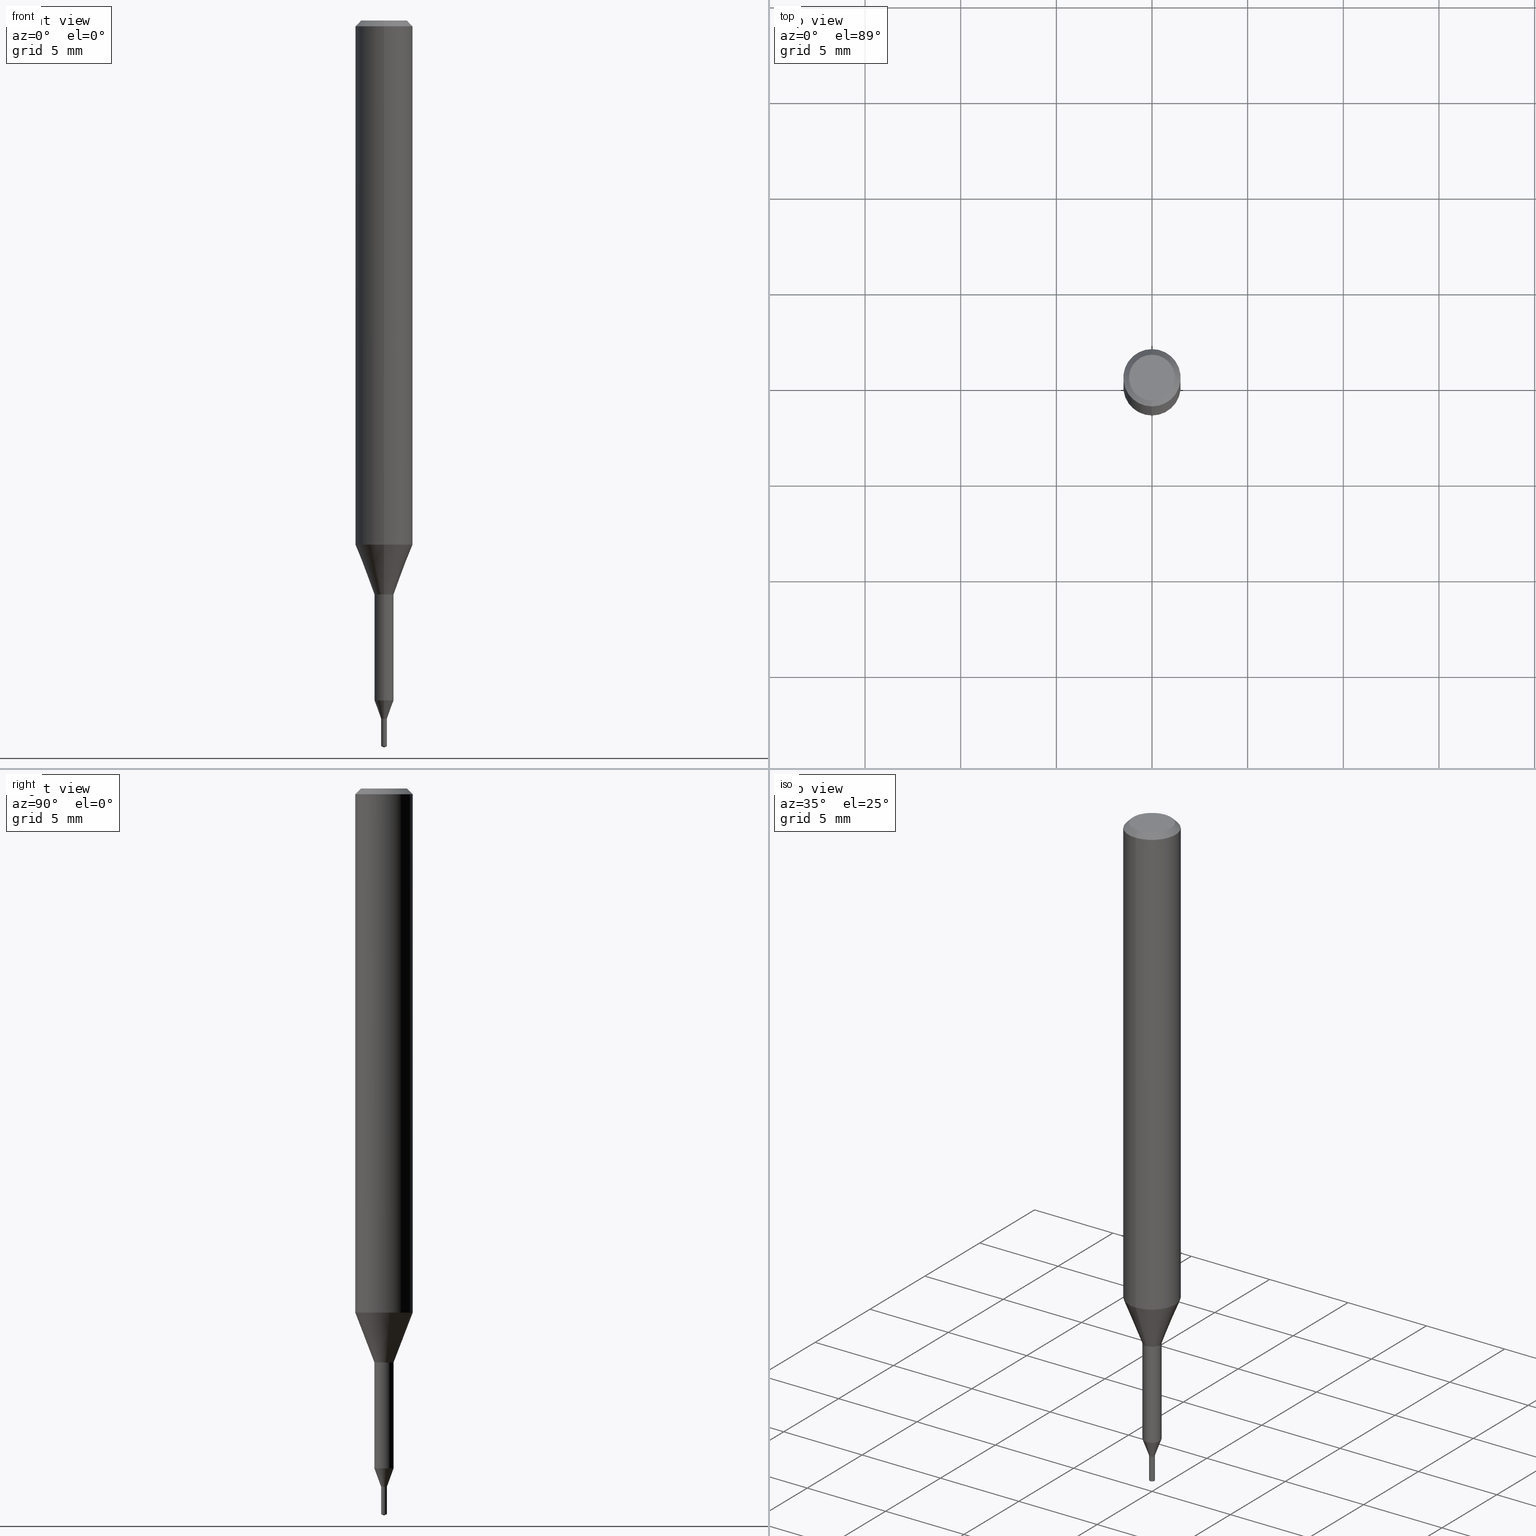
[diagram: canonical four-view strip — front | top / right | iso, engineering-drawing reading convention]
A machine part, canonical four-view strip (front | top / right | iso — engineering-drawing reading convention). The complete STEP part file that produces these views, byte-faithful:
ISO-10303-21;
HEADER;
FILE_DESCRIPTION(('no description'),'unknown implementation level');
FILE_NAME('UTDSX2030-015-Huellk.stp','  ',('CIMSOURCE GmbH'),('CADClick - KiM GmbH - www.kimweb.de'),'unknown preprocess','ACIS','unknown authorization');
FILE_SCHEMA(('automotive_design'));
ENDSEC;
DATA;
#1=MECHANICAL_DESIGN_GEOMETRIC_PRESENTATION_REPRESENTATION(' ',(#14,#15,#16,#17,#18,#19,#20,#21,#22,#23,#24,#25,#26,#27,#28,#29,#30,#31,#32,#33,#34,#35,#36,#37,#38,#39,#40,#41,#42,#43,#44,#45,#46,#47,#48,#49,#50,#51,#52,#53,#54,#55,#56,#57,#58,#59,#60,#61,#62,#63,#64,#65,#66,#67,#68,#69,#70,#71,#72,#73,#74,#75,#76,#77,#78,#79,#80,#81,#82,#83,#84,#85,#86,#87,#88,#89,#90,#91,#92),#10);
#2=PRODUCT_DEFINITION_CONTEXT('',#93,'design');
#3=APPLICATION_PROTOCOL_DEFINITION('INTERNATIONAL STANDARD','automotive_design',1994,#93);
#4=PRODUCT_CATEGORY_RELATIONSHIP('NONE','NONE',#94,#95);
#5=SHAPE_DEFINITION_REPRESENTATION(#96,#97);
#6=PRODUCT_DEFINITION_CONTEXT('',#98,'design');
#7=APPLICATION_PROTOCOL_DEFINITION('INTERNATIONAL STANDARD','automotive_design',1994,#98);
#8=PRODUCT_CATEGORY_RELATIONSHIP('NONE','NONE',#99,#100);
#9=SHAPE_DEFINITION_REPRESENTATION(#101,#102);
#10= (GEOMETRIC_REPRESENTATION_CONTEXT(3)GLOBAL_UNCERTAINTY_ASSIGNED_CONTEXT((#105))GLOBAL_UNIT_ASSIGNED_CONTEXT((#107,#108,#109))REPRESENTATION_CONTEXT('NONE','WORKSPACE'));
#14=STYLED_ITEM('',(#111),#112);
#15=STYLED_ITEM('',(#113),#114);
#16=STYLED_ITEM('',(#115),#116);
#17=STYLED_ITEM('',(#117),#118);
#18=STYLED_ITEM('',(#119),#120);
#19=STYLED_ITEM('',(#121),#122);
#20=STYLED_ITEM('',(#123),#124);
#21=STYLED_ITEM('',(#125),#126);
#22=STYLED_ITEM('',(#127),#128);
#23=STYLED_ITEM('',(#129),#130);
#24=STYLED_ITEM('',(#131),#132);
#25=STYLED_ITEM('',(#133),#134);
#26=STYLED_ITEM('',(#135),#136);
#27=STYLED_ITEM('',(#137),#138);
#28=STYLED_ITEM('',(#139),#140);
#29=STYLED_ITEM('',(#141),#142);
#30=STYLED_ITEM('',(#143),#144);
#31=STYLED_ITEM('',(#145),#146);
#32=STYLED_ITEM('',(#147),#148);
#33=STYLED_ITEM('',(#149),#150);
#34=STYLED_ITEM('',(#151),#152);
#35=STYLED_ITEM('',(#153),#154);
#36=STYLED_ITEM('',(#155),#156);
#37=STYLED_ITEM('',(#157),#158);
#38=STYLED_ITEM('',(#159),#160);
#39=STYLED_ITEM('',(#161),#162);
#40=STYLED_ITEM('',(#163),#164);
#41=STYLED_ITEM('',(#165),#166);
#42=STYLED_ITEM('',(#167),#168);
#43=STYLED_ITEM('',(#169),#170);
#44=STYLED_ITEM('',(#171),#172);
#45=STYLED_ITEM('',(#173),#174);
#46=STYLED_ITEM('',(#175),#176);
#47=STYLED_ITEM('',(#177),#178);
#48=STYLED_ITEM('',(#179),#180);
#49=STYLED_ITEM('',(#181),#182);
#50=STYLED_ITEM('',(#183),#184);
#51=STYLED_ITEM('',(#185),#186);
#52=STYLED_ITEM('',(#187),#188);
#53=STYLED_ITEM('',(#189),#190);
#54=STYLED_ITEM('',(#191),#192);
#55=STYLED_ITEM('',(#193),#194);
#56=STYLED_ITEM('',(#195),#196);
#57=STYLED_ITEM('',(#197),#198);
#58=STYLED_ITEM('',(#199),#200);
#59=STYLED_ITEM('',(#201),#202);
#60=STYLED_ITEM('',(#203),#204);
#61=STYLED_ITEM('',(#205),#206);
#62=STYLED_ITEM('',(#207),#208);
#63=STYLED_ITEM('',(#209),#210);
#64=STYLED_ITEM('',(#211),#212);
#65=STYLED_ITEM('',(#213),#214);
#66=STYLED_ITEM('',(#215),#216);
#67=STYLED_ITEM('',(#217),#218);
#68=STYLED_ITEM('',(#219),#220);
#69=STYLED_ITEM('',(#221),#222);
#70=STYLED_ITEM('',(#223),#224);
#71=STYLED_ITEM('',(#225),#226);
#72=STYLED_ITEM('',(#227),#228);
#73=STYLED_ITEM('',(#229),#230);
#74=STYLED_ITEM('',(#231),#232);
#75=STYLED_ITEM('',(#233),#234);
#76=STYLED_ITEM('',(#235),#236);
#77=STYLED_ITEM('',(#237),#238);
#78=STYLED_ITEM('',(#239),#240);
#79=STYLED_ITEM('',(#241),#242);
#80=STYLED_ITEM('',(#243),#244);
#81=STYLED_ITEM('',(#245),#246);
#82=STYLED_ITEM('',(#247),#248);
#83=STYLED_ITEM('',(#249),#250);
#84=STYLED_ITEM('',(#251),#252);
#85=STYLED_ITEM('',(#253),#254);
#86=STYLED_ITEM('',(#255),#256);
#87=STYLED_ITEM('',(#257),#258);
#88=STYLED_ITEM('',(#259),#260);
#89=STYLED_ITEM('',(#261),#262);
#90=STYLED_ITEM('',(#263),#264);
#91=STYLED_ITEM('',(#265),#266);
#92=STYLED_ITEM('',(#267),#268);
#93=APPLICATION_CONTEXT(' ');
#94=PRODUCT_CATEGORY('part','NONE');
#95=PRODUCT_RELATED_PRODUCT_CATEGORY('detail',' ',(#269));
#96=PRODUCT_DEFINITION_SHAPE('NONE','NONE',#270);
#97=ADVANCED_BREP_SHAPE_REPRESENTATION('1',(#164,#271),#10);
#98=APPLICATION_CONTEXT(' ');
#99=PRODUCT_CATEGORY('part','NONE');
#100=PRODUCT_RELATED_PRODUCT_CATEGORY('detail',' ',(#272));
#101=PRODUCT_DEFINITION_SHAPE('NONE','NONE',#273);
#102=ADVANCED_BREP_SHAPE_REPRESENTATION('2',(#128,#274),#10);
#105=UNCERTAINTY_MEASURE_WITH_UNIT(LENGTH_MEASURE(1.0E-006),#107,'','');
#107= (CONVERSION_BASED_UNIT('MILLIMETRE',#277)LENGTH_UNIT()NAMED_UNIT(#280));
#108= (NAMED_UNIT(#282)PLANE_ANGLE_UNIT()SI_UNIT($,.RADIAN.));
#109= (NAMED_UNIT(#282)SOLID_ANGLE_UNIT()SI_UNIT($,.STERADIAN.));
#111=PRESENTATION_STYLE_ASSIGNMENT((#288));
#112=EDGE_CURVE('',#234,#254,#289,.T.);
#113=PRESENTATION_STYLE_ASSIGNMENT((#290));
#114=ADVANCED_FACE('',(#291),#292,.T.);
#115=PRESENTATION_STYLE_ASSIGNMENT((#293));
#116=EDGE_CURVE('',#222,#254,#294,.T.);
#117=PRESENTATION_STYLE_ASSIGNMENT((#295));
#118=EDGE_CURVE('',#238,#166,#296,.T.);
#119=PRESENTATION_STYLE_ASSIGNMENT((#297));
#120=EDGE_CURVE('',#248,#166,#298,.T.);
#121=PRESENTATION_STYLE_ASSIGNMENT((#299));
#122=EDGE_CURVE('',#186,#184,#300,.T.);
#123=PRESENTATION_STYLE_ASSIGNMENT((#301));
#124=ADVANCED_FACE('',(#302),#303,.T.);
#125=PRESENTATION_STYLE_ASSIGNMENT((#304));
#126=VERTEX_POINT('',#305);
#127=PRESENTATION_STYLE_ASSIGNMENT((#306));
#128=MANIFOLD_SOLID_BREP('2',#307);
#129=PRESENTATION_STYLE_ASSIGNMENT((#308));
#130=ADVANCED_FACE('',(#309,#310),#311,.T.);
#131=PRESENTATION_STYLE_ASSIGNMENT((#312));
#132=EDGE_CURVE('',#144,#186,#313,.T.);
#133=PRESENTATION_STYLE_ASSIGNMENT((#314));
#134=EDGE_CURVE('',#242,#148,#315,.T.);
#135=PRESENTATION_STYLE_ASSIGNMENT((#316));
#136=VERTEX_POINT('',#317);
#137=PRESENTATION_STYLE_ASSIGNMENT((#318));
#138=ADVANCED_FACE('',(#319),#320,.T.);
#139=PRESENTATION_STYLE_ASSIGNMENT((#321));
#140=EDGE_CURVE('',#234,#236,#322,.T.);
#141=PRESENTATION_STYLE_ASSIGNMENT((#323));
#142=ADVANCED_FACE('',(#324),#325,.T.);
#143=PRESENTATION_STYLE_ASSIGNMENT((#326));
#144=VERTEX_POINT('',#327);
#145=PRESENTATION_STYLE_ASSIGNMENT((#328));
#146=EDGE_CURVE('',#126,#222,#329,.T.);
#147=PRESENTATION_STYLE_ASSIGNMENT((#330));
#148=VERTEX_POINT('',#331);
#149=PRESENTATION_STYLE_ASSIGNMENT((#332));
#150=ADVANCED_FACE('',(#333),#334,.T.);
#151=PRESENTATION_STYLE_ASSIGNMENT((#335));
#152=ADVANCED_FACE('',(#336),#337,.T.);
#153=PRESENTATION_STYLE_ASSIGNMENT((#338));
#154=EDGE_CURVE('',#254,#162,#339,.T.);
#155=PRESENTATION_STYLE_ASSIGNMENT((#340));
#156=EDGE_CURVE('',#126,#162,#341,.T.);
#157=PRESENTATION_STYLE_ASSIGNMENT((#342));
#158=VERTEX_POINT('',#343);
#159=PRESENTATION_STYLE_ASSIGNMENT((#344));
#160=EDGE_CURVE('',#186,#246,#345,.T.);
#161=PRESENTATION_STYLE_ASSIGNMENT((#346));
#162=VERTEX_POINT('',#347);
#163=PRESENTATION_STYLE_ASSIGNMENT((#348));
#164=MANIFOLD_SOLID_BREP('1',#349);
#165=PRESENTATION_STYLE_ASSIGNMENT((#350));
#166=VERTEX_POINT('',#351);
#167=PRESENTATION_STYLE_ASSIGNMENT((#352));
#168=ADVANCED_FACE('',(#353),#354,.T.);
#169=PRESENTATION_STYLE_ASSIGNMENT((#355));
#170=ADVANCED_FACE('',(#356),#357,.T.);
#171=PRESENTATION_STYLE_ASSIGNMENT((#358));
#172=EDGE_CURVE('',#162,#126,#359,.T.);
#173=PRESENTATION_STYLE_ASSIGNMENT((#360));
#174=ADVANCED_FACE('',(#361),#362,.T.);
#175=PRESENTATION_STYLE_ASSIGNMENT((#363));
#176=VERTEX_POINT('',#364);
#177=PRESENTATION_STYLE_ASSIGNMENT((#365));
#178=EDGE_CURVE('',#158,#242,#366,.T.);
#179=PRESENTATION_STYLE_ASSIGNMENT((#367));
#180=EDGE_CURVE('',#162,#136,#368,.T.);
#181=PRESENTATION_STYLE_ASSIGNMENT((#369));
#182=VERTEX_POINT('',#370);
#183=PRESENTATION_STYLE_ASSIGNMENT((#371));
#184=VERTEX_POINT('',#372);
#185=PRESENTATION_STYLE_ASSIGNMENT((#373));
#186=VERTEX_POINT('',#374);
#187=PRESENTATION_STYLE_ASSIGNMENT((#375));
#188=EDGE_CURVE('',#242,#182,#376,.T.);
#189=PRESENTATION_STYLE_ASSIGNMENT((#377));
#190=EDGE_CURVE('',#144,#232,#378,.T.);
#191=PRESENTATION_STYLE_ASSIGNMENT((#379));
#192=EDGE_CURVE('',#222,#236,#380,.T.);
#193=PRESENTATION_STYLE_ASSIGNMENT((#381));
#194=EDGE_CURVE('',#158,#238,#382,.T.);
#195=PRESENTATION_STYLE_ASSIGNMENT((#383));
#196=EDGE_CURVE('',#236,#234,#384,.T.);
#197=PRESENTATION_STYLE_ASSIGNMENT((#385));
#198=EDGE_CURVE('',#232,#144,#386,.T.);
#199=PRESENTATION_STYLE_ASSIGNMENT((#387));
#200=ADVANCED_FACE('',(#388),#389,.T.);
#201=PRESENTATION_STYLE_ASSIGNMENT((#390));
#202=EDGE_CURVE('',#246,#204,#391,.T.);
#203=PRESENTATION_STYLE_ASSIGNMENT((#392));
#204=VERTEX_POINT('',#393);
#205=PRESENTATION_STYLE_ASSIGNMENT((#394));
#206=ADVANCED_FACE('',(#395),#396,.T.);
#207=PRESENTATION_STYLE_ASSIGNMENT((#397));
#208=EDGE_CURVE('',#176,#182,#398,.T.);
#209=PRESENTATION_STYLE_ASSIGNMENT((#399));
#210=EDGE_CURVE('',#238,#158,#400,.T.);
#211=PRESENTATION_STYLE_ASSIGNMENT((#401));
#212=EDGE_CURVE('',#176,#148,#402,.T.);
#213=PRESENTATION_STYLE_ASSIGNMENT((#403));
#214=EDGE_CURVE('',#148,#176,#404,.T.);
#215=PRESENTATION_STYLE_ASSIGNMENT((#405));
#216=ADVANCED_FACE('',(#406),#407,.T.);
#217=PRESENTATION_STYLE_ASSIGNMENT((#408));
#218=EDGE_CURVE('',#248,#158,#409,.T.);
#219=PRESENTATION_STYLE_ASSIGNMENT((#410));
#220=ADVANCED_FACE('',(#411),#412,.T.);
#221=PRESENTATION_STYLE_ASSIGNMENT((#413));
#222=VERTEX_POINT('',#414);
#223=PRESENTATION_STYLE_ASSIGNMENT((#415));
#224=ADVANCED_FACE('',(#416),#417,.T.);
#225=PRESENTATION_STYLE_ASSIGNMENT((#418));
#226=ADVANCED_FACE('',(#419),#420,.T.);
#227=PRESENTATION_STYLE_ASSIGNMENT((#421));
#228=ADVANCED_FACE('',(#422),#423,.T.);
#229=PRESENTATION_STYLE_ASSIGNMENT((#424));
#230=ADVANCED_FACE('',(#425),#426,.T.);
#231=PRESENTATION_STYLE_ASSIGNMENT((#427));
#232=VERTEX_POINT('',#428);
#233=PRESENTATION_STYLE_ASSIGNMENT((#429));
#234=VERTEX_POINT('',#430);
#235=PRESENTATION_STYLE_ASSIGNMENT((#431));
#236=VERTEX_POINT('',#432);
#237=PRESENTATION_STYLE_ASSIGNMENT((#433));
#238=VERTEX_POINT('',#434);
#239=PRESENTATION_STYLE_ASSIGNMENT((#435));
#240=EDGE_CURVE('',#184,#186,#436,.T.);
#241=PRESENTATION_STYLE_ASSIGNMENT((#437));
#242=VERTEX_POINT('',#438);
#243=PRESENTATION_STYLE_ASSIGNMENT((#439));
#244=EDGE_CURVE('',#204,#246,#440,.T.);
#245=PRESENTATION_STYLE_ASSIGNMENT((#441));
#246=VERTEX_POINT('',#442);
#247=PRESENTATION_STYLE_ASSIGNMENT((#443));
#248=VERTEX_POINT('',#444);
#249=PRESENTATION_STYLE_ASSIGNMENT((#445));
#250=EDGE_CURVE('',#204,#184,#446,.T.);
#251=PRESENTATION_STYLE_ASSIGNMENT((#447));
#252=ADVANCED_FACE('',(#448),#449,.T.);
#253=PRESENTATION_STYLE_ASSIGNMENT((#450));
#254=VERTEX_POINT('',#451);
#255=PRESENTATION_STYLE_ASSIGNMENT((#452));
#256=EDGE_CURVE('',#166,#248,#453,.T.);
#257=PRESENTATION_STYLE_ASSIGNMENT((#454));
#258=EDGE_CURVE('',#182,#242,#455,.T.);
#259=PRESENTATION_STYLE_ASSIGNMENT((#456));
#260=EDGE_CURVE('',#136,#126,#457,.T.);
#261=PRESENTATION_STYLE_ASSIGNMENT((#458));
#262=EDGE_CURVE('',#184,#232,#459,.T.);
#263=PRESENTATION_STYLE_ASSIGNMENT((#460));
#264=EDGE_CURVE('',#254,#222,#461,.T.);
#265=PRESENTATION_STYLE_ASSIGNMENT((#462));
#266=EDGE_CURVE('',#182,#238,#463,.T.);
#267=PRESENTATION_STYLE_ASSIGNMENT((#464));
#268=ADVANCED_FACE('',(#465),#466,.T.);
#269=PRODUCT('1','1','PART-1-DESC',(#467));
#270=PRODUCT_DEFINITION('NONE','NONE',#468,#2);
#271=AXIS2_PLACEMENT_3D('',#469,#470,#471);
#272=PRODUCT('2','2','PART-2-DESC',(#472));
#273=PRODUCT_DEFINITION('NONE','NONE',#473,#6);
#274=AXIS2_PLACEMENT_3D('',#474,#475,#476);
#277=LENGTH_MEASURE_WITH_UNIT(LENGTH_MEASURE(1.0),#477);
#280=DIMENSIONAL_EXPONENTS(1.0,0.0,0.0,0.0,0.0,0.0,0.0);
#282=DIMENSIONAL_EXPONENTS(0.0,0.0,0.0,0.0,0.0,0.0,0.0);
#288=CURVE_STYLE('',#478,POSITIVE_LENGTH_MEASURE(1.0E-006),#479);
#289=LINE('',#480,#481);
#290=SURFACE_STYLE_USAGE(.BOTH.,#482);
#291=FACE_OUTER_BOUND('',#483,.T.);
#292=PLANE('',#484);
#293=CURVE_STYLE('',#485,POSITIVE_LENGTH_MEASURE(1.0E-006),#486);
#294=CIRCLE('',#487,0.15);
#295=CURVE_STYLE('',#488,POSITIVE_LENGTH_MEASURE(1.0E-006),#489);
#296=LINE('',#490,#491);
#297=CURVE_STYLE('',#492,POSITIVE_LENGTH_MEASURE(1.0E-006),#493);
#298=CIRCLE('',#494,0.5);
#299=CURVE_STYLE('',#495,POSITIVE_LENGTH_MEASURE(1.0E-006),#496);
#300=CIRCLE('',#497,0.49995);
#301=SURFACE_STYLE_USAGE(.BOTH.,#498);
#302=FACE_OUTER_BOUND('',#499,.T.);
#303=CONICAL_SURFACE('',#500,0.075,1.13446400680488);
#304=POINT_STYLE(' ',#501,POSITIVE_LENGTH_MEASURE(1.0E-006),#502);
#305=CARTESIAN_POINT('',(0.15,1.83690953073357E-017,-37.93005385));
#306=SURFACE_STYLE_USAGE(.BOTH.,#503);
#307=CLOSED_SHELL('',(#124,#226,#174,#170,#168,#138,#216));
#308=SURFACE_STYLE_USAGE(.BOTH.,#504);
#309=FACE_BOUND('',#505,.T.);
#310=FACE_OUTER_BOUND('',#506,.T.);
#311=PLANE('',#507);
#312=CURVE_STYLE('',#508,POSITIVE_LENGTH_MEASURE(1.0E-006),#509);
#313=LINE('',#510,#511);
#314=CURVE_STYLE('',#512,POSITIVE_LENGTH_MEASURE(1.0E-006),#513);
#315=LINE('',#514,#515);
#316=POINT_STYLE(' ',#516,POSITIVE_LENGTH_MEASURE(1.0E-006),#517);
#317=CARTESIAN_POINT('',(0.0,0.0,-38.0));
#318=SURFACE_STYLE_USAGE(.BOTH.,#518);
#319=FACE_OUTER_BOUND('',#519,.T.);
#320=CYLINDRICAL_SURFACE('',#520,0.15);
#321=CURVE_STYLE('',#521,POSITIVE_LENGTH_MEASURE(1.0E-006),#522);
#322=CIRCLE('',#523,0.151036382536382);
#323=SURFACE_STYLE_USAGE(.BOTH.,#524);
#324=FACE_OUTER_BOUND('',#525,.T.);
#325=CYLINDRICAL_SURFACE('',#526,0.49995);
#326=POINT_STYLE(' ',#527,POSITIVE_LENGTH_MEASURE(1.0E-006),#528);
#327=CARTESIAN_POINT('',(1.83735500993681E-017,-0.150036377338877,-36.4999));
#328=CURVE_STYLE('',#529,POSITIVE_LENGTH_MEASURE(1.0E-006),#530);
#329=LINE('',#531,#532);
#330=POINT_STYLE(' ',#533,POSITIVE_LENGTH_MEASURE(1.0E-006),#534);
#331=CARTESIAN_POINT('',(1.46952762458685E-016,-1.2,0.0));
#332=SURFACE_STYLE_USAGE(.BOTH.,#535);
#333=FACE_OUTER_BOUND('',#536,.T.);
#334=CONICAL_SURFACE('',#537,1.35,0.785398163397447);
#335=SURFACE_STYLE_USAGE(.BOTH.,#538);
#336=FACE_OUTER_BOUND('',#539,.T.);
#337=CONICAL_SURFACE('',#540,1.0,0.366530581623394);
#338=CURVE_STYLE('',#541,POSITIVE_LENGTH_MEASURE(1.0E-006),#542);
#339=LINE('',#543,#544);
#340=CURVE_STYLE('',#545,POSITIVE_LENGTH_MEASURE(1.0E-006),#546);
#341=CIRCLE('',#547,0.15);
#342=POINT_STYLE(' ',#548,POSITIVE_LENGTH_MEASURE(1.0E-006),#549);
#343=CARTESIAN_POINT('',(1.83690953073357E-016,-1.5,-27.395));
#344=CURVE_STYLE('',#550,POSITIVE_LENGTH_MEASURE(1.0E-006),#551);
#345=LINE('',#552,#553);
#346=POINT_STYLE(' ',#554,POSITIVE_LENGTH_MEASURE(1.0E-006),#555);
#347=CARTESIAN_POINT('',(-0.15,0.0,-37.93005385));
#348=SURFACE_STYLE_USAGE(.BOTH.,#556);
#349=CLOSED_SHELL('',(#224,#142,#152,#228,#150,#114,#252,#230,#220,#130,#268,#200,#206));
#350=POINT_STYLE(' ',#557,POSITIVE_LENGTH_MEASURE(1.0E-006),#558);
#351=CARTESIAN_POINT('',(0.0,0.5,-30.0));
#352=SURFACE_STYLE_USAGE(.BOTH.,#559);
#353=FACE_OUTER_BOUND('',#560,.T.);
#354=CONICAL_SURFACE('',#561,0.150518191268191,1.47460464266916);
#355=SURFACE_STYLE_USAGE(.BOTH.,#562);
#356=FACE_OUTER_BOUND('',#563,.T.);
#357=PLANE('',#564);
#358=CURVE_STYLE('',#565,POSITIVE_LENGTH_MEASURE(1.0E-006),#566);
#359=CIRCLE('',#567,0.15);
#360=SURFACE_STYLE_USAGE(.BOTH.,#568);
#361=FACE_OUTER_BOUND('',#569,.T.);
#362=CONICAL_SURFACE('',#570,0.150518191268191,1.47460464266916);
#363=POINT_STYLE(' ',#571,POSITIVE_LENGTH_MEASURE(1.0E-006),#572);
#364=CARTESIAN_POINT('',(0.0,1.2,0.0));
#365=CURVE_STYLE('',#573,POSITIVE_LENGTH_MEASURE(1.0E-006),#574);
#366=LINE('',#575,#576);
#367=CURVE_STYLE('',#577,POSITIVE_LENGTH_MEASURE(1.0E-006),#578);
#368=LINE('',#579,#580);
#369=POINT_STYLE(' ',#581,POSITIVE_LENGTH_MEASURE(1.0E-006),#582);
#370=CARTESIAN_POINT('',(0.0,1.5,-0.300000000000001));
#371=POINT_STYLE(' ',#583,POSITIVE_LENGTH_MEASURE(1.0E-006),#584);
#372=CARTESIAN_POINT('',(0.0,0.49995,-35.538));
#373=POINT_STYLE(' ',#585,POSITIVE_LENGTH_MEASURE(1.0E-006),#586);
#374=CARTESIAN_POINT('',(6.12241946593498E-017,-0.49995,-35.538));
#375=CURVE_STYLE('',#587,POSITIVE_LENGTH_MEASURE(1.0E-006),#588);
#376=CIRCLE('',#589,1.5);
#377=CURVE_STYLE('',#590,POSITIVE_LENGTH_MEASURE(1.0E-006),#591);
#378=CIRCLE('',#592,0.150036377338877);
#379=CURVE_STYLE('',#593,POSITIVE_LENGTH_MEASURE(1.0E-006),#594);
#380=LINE('',#595,#596);
#381=CURVE_STYLE('',#597,POSITIVE_LENGTH_MEASURE(1.0E-006),#598);
#382=CIRCLE('',#599,1.5);
#383=CURVE_STYLE('',#600,POSITIVE_LENGTH_MEASURE(1.0E-006),#601);
#384=CIRCLE('',#602,0.151036382536382);
#385=CURVE_STYLE('',#603,POSITIVE_LENGTH_MEASURE(1.0E-006),#604);
#386=CIRCLE('',#605,0.150036377338877);
#387=SURFACE_STYLE_USAGE(.BOTH.,#606);
#388=FACE_OUTER_BOUND('',#607,.T.);
#389=CONICAL_SURFACE('',#608,0.324993188669439,0.348892020458911);
#390=CURVE_STYLE('',#609,POSITIVE_LENGTH_MEASURE(1.0E-006),#610);
#391=CIRCLE('',#611,0.49995);
#392=POINT_STYLE(' ',#612,POSITIVE_LENGTH_MEASURE(1.0E-006),#613);
#393=CARTESIAN_POINT('',(0.0,0.49995,-30.0));
#394=SURFACE_STYLE_USAGE(.BOTH.,#614);
#395=FACE_OUTER_BOUND('',#615,.T.);
#396=PLANE('',#616);
#397=CURVE_STYLE('',#617,POSITIVE_LENGTH_MEASURE(1.0E-006),#618);
#398=LINE('',#619,#620);
#399=CURVE_STYLE('',#621,POSITIVE_LENGTH_MEASURE(1.0E-006),#622);
#400=CIRCLE('',#623,1.5);
#401=CURVE_STYLE('',#624,POSITIVE_LENGTH_MEASURE(1.0E-006),#625);
#402=CIRCLE('',#626,1.2);
#403=CURVE_STYLE('',#627,POSITIVE_LENGTH_MEASURE(1.0E-006),#628);
#404=CIRCLE('',#629,1.2);
#405=SURFACE_STYLE_USAGE(.BOTH.,#630);
#406=FACE_OUTER_BOUND('',#631,.T.);
#407=CONICAL_SURFACE('',#632,0.075,1.13446400680488);
#408=CURVE_STYLE('',#633,POSITIVE_LENGTH_MEASURE(1.0E-006),#634);
#409=LINE('',#635,#636);
#410=SURFACE_STYLE_USAGE(.BOTH.,#637);
#411=FACE_OUTER_BOUND('',#638,.T.);
#412=CONICAL_SURFACE('',#639,1.0,0.366530581623394);
#413=POINT_STYLE(' ',#640,POSITIVE_LENGTH_MEASURE(1.0E-006),#641);
#414=CARTESIAN_POINT('',(0.15,1.83690953073357E-017,-36.5));
#415=SURFACE_STYLE_USAGE(.BOTH.,#642);
#416=FACE_OUTER_BOUND('',#643,.T.);
#417=CONICAL_SURFACE('',#644,0.324993188669439,0.348892020458911);
#418=SURFACE_STYLE_USAGE(.BOTH.,#645);
#419=FACE_OUTER_BOUND('',#646,.T.);
#420=CYLINDRICAL_SURFACE('',#647,0.15);
#421=SURFACE_STYLE_USAGE(.BOTH.,#648);
#422=FACE_OUTER_BOUND('',#649,.T.);
#423=CYLINDRICAL_SURFACE('',#650,1.5);
#424=SURFACE_STYLE_USAGE(.BOTH.,#651);
#425=FACE_OUTER_BOUND('',#652,.T.);
#426=CYLINDRICAL_SURFACE('',#653,1.5);
#427=POINT_STYLE(' ',#654,POSITIVE_LENGTH_MEASURE(1.0E-006),#655);
#428=CARTESIAN_POINT('',(0.0,0.150036377338877,-36.4999));
#429=POINT_STYLE(' ',#656,POSITIVE_LENGTH_MEASURE(1.0E-006),#657);
#430=CARTESIAN_POINT('',(-0.151036382536382,0.0,-36.4999));
#431=POINT_STYLE(' ',#658,POSITIVE_LENGTH_MEASURE(1.0E-006),#659);
#432=CARTESIAN_POINT('',(0.151036382536382,1.84960113712401E-017,-36.4999));
#433=POINT_STYLE(' ',#660,POSITIVE_LENGTH_MEASURE(1.0E-006),#661);
#434=CARTESIAN_POINT('',(0.0,1.5,-27.395));
#435=CURVE_STYLE('',#662,POSITIVE_LENGTH_MEASURE(1.0E-006),#663);
#436=CIRCLE('',#664,0.49995);
#437=POINT_STYLE(' ',#665,POSITIVE_LENGTH_MEASURE(1.0E-006),#666);
#438=CARTESIAN_POINT('',(1.83690953073357E-016,-1.5,-0.300000000000001));
#439=CURVE_STYLE('',#667,POSITIVE_LENGTH_MEASURE(1.0E-006),#668);
#440=CIRCLE('',#669,0.49995);
#441=POINT_STYLE(' ',#670,POSITIVE_LENGTH_MEASURE(1.0E-006),#671);
#442=CARTESIAN_POINT('',(6.12241946593498E-017,-0.49995,-30.0));
#443=POINT_STYLE(' ',#672,POSITIVE_LENGTH_MEASURE(1.0E-006),#673);
#444=CARTESIAN_POINT('',(6.12303176911189E-017,-0.5,-30.0));
#445=CURVE_STYLE('',#674,POSITIVE_LENGTH_MEASURE(1.0E-006),#675);
#446=LINE('',#676,#677);
#447=SURFACE_STYLE_USAGE(.BOTH.,#678);
#448=FACE_OUTER_BOUND('',#679,.T.);
#449=CONICAL_SURFACE('',#680,1.35,0.785398163397447);
#450=POINT_STYLE(' ',#681,POSITIVE_LENGTH_MEASURE(1.0E-006),#682);
#451=CARTESIAN_POINT('',(-0.15,0.0,-36.5));
#452=CURVE_STYLE('',#683,POSITIVE_LENGTH_MEASURE(1.0E-006),#684);
#453=CIRCLE('',#685,0.5);
#454=CURVE_STYLE('',#686,POSITIVE_LENGTH_MEASURE(1.0E-006),#687);
#455=CIRCLE('',#688,1.5);
#456=CURVE_STYLE('',#689,POSITIVE_LENGTH_MEASURE(1.0E-006),#690);
#457=LINE('',#691,#692);
#458=CURVE_STYLE('',#693,POSITIVE_LENGTH_MEASURE(1.0E-006),#694);
#459=LINE('',#695,#696);
#460=CURVE_STYLE('',#697,POSITIVE_LENGTH_MEASURE(1.0E-006),#698);
#461=CIRCLE('',#699,0.15);
#462=CURVE_STYLE('',#700,POSITIVE_LENGTH_MEASURE(1.0E-006),#701);
#463=LINE('',#702,#703);
#464=SURFACE_STYLE_USAGE(.BOTH.,#704);
#465=FACE_OUTER_BOUND('',#705,.T.);
#466=CYLINDRICAL_SURFACE('',#706,0.49995);
#467=PRODUCT_CONTEXT('',#93,'mechanical');
#468=PRODUCT_DEFINITION_FORMATION_WITH_SPECIFIED_SOURCE(' ','NONE',#269,.NOT_KNOWN.);
#469=CARTESIAN_POINT('',(0.0,0.0,0.0));
#470=DIRECTION('',(0.0,0.0,1.0));
#471=DIRECTION('',(1.0,0.0,0.0));
#472=PRODUCT_CONTEXT('',#98,'mechanical');
#473=PRODUCT_DEFINITION_FORMATION_WITH_SPECIFIED_SOURCE(' ','NONE',#272,.NOT_KNOWN.);
#474=CARTESIAN_POINT('',(0.0,0.0,0.0));
#475=DIRECTION('',(0.0,0.0,1.0));
#476=DIRECTION('',(1.0,0.0,0.0));
#477= (NAMED_UNIT(#280)LENGTH_UNIT()SI_UNIT(.MILLI.,.METRE.));
#478=DRAUGHTING_PRE_DEFINED_CURVE_FONT('continuous');
#479=COLOUR_RGB('',0.800000011920929,0.800000011920929,0.800000011920929);
#480=CARTESIAN_POINT('',(-0.150518191268191,-1.84325533392879E-017,-36.49995));
#481=VECTOR('',#708,1.0);
#482=SURFACE_SIDE_STYLE('',(#709));
#483=EDGE_LOOP('',(#710,#711));
#484=AXIS2_PLACEMENT_3D('',#712,#713,#714);
#485=DRAUGHTING_PRE_DEFINED_CURVE_FONT('continuous');
#486=COLOUR_RGB('',0.800000011920929,0.800000011920929,0.800000011920929);
#487=AXIS2_PLACEMENT_3D('',#715,#716,#717);
#488=DRAUGHTING_PRE_DEFINED_CURVE_FONT('continuous');
#489=COLOUR_RGB('',0.498039215803146,0.498039215803146,0.498039215803146);
#490=CARTESIAN_POINT('',(-1.22460635382238E-016,1.0,-28.6975));
#491=VECTOR('',#718,1.0);
#492=DRAUGHTING_PRE_DEFINED_CURVE_FONT('continuous');
#493=COLOUR_RGB('',0.498039215803146,0.498039215803146,0.498039215803146);
#494=AXIS2_PLACEMENT_3D('',#719,#720,#721);
#495=DRAUGHTING_PRE_DEFINED_CURVE_FONT('continuous');
#496=COLOUR_RGB('',0.498039215803146,0.498039215803146,0.498039215803146);
#497=AXIS2_PLACEMENT_3D('',#722,#723,#724);
#498=SURFACE_SIDE_STYLE('',(#725));
#499=EDGE_LOOP('',(#726,#727,#728));
#500=AXIS2_PLACEMENT_3D('',#729,#730,#731);
#501=PRE_DEFINED_MARKER('');
#502=COLOUR_RGB('',0.800000011920929,0.800000011920929,0.800000011920929);
#503=SURFACE_SIDE_STYLE('',(#732));
#504=SURFACE_SIDE_STYLE('',(#733));
#505=EDGE_LOOP('',(#734,#735));
#506=EDGE_LOOP('',(#736,#737));
#507=AXIS2_PLACEMENT_3D('',#738,#739,#740);
#508=DRAUGHTING_PRE_DEFINED_CURVE_FONT('continuous');
#509=COLOUR_RGB('',0.498039215803146,0.498039215803146,0.498039215803146);
#510=CARTESIAN_POINT('',(3.97988723793589E-017,-0.324993188669439,-36.01895));
#511=VECTOR('',#741,1.0);
#512=DRAUGHTING_PRE_DEFINED_CURVE_FONT('continuous');
#513=COLOUR_RGB('',0.498039215803146,0.498039215803146,0.498039215803146);
#514=CARTESIAN_POINT('',(1.65321857766021E-016,-1.35,-0.150000000000002));
#515=VECTOR('',#742,1.0);
#516=PRE_DEFINED_MARKER('');
#517=COLOUR_RGB('',0.800000011920929,0.800000011920929,0.800000011920929);
#518=SURFACE_SIDE_STYLE('',(#743));
#519=EDGE_LOOP('',(#744,#745,#746,#747));
#520=AXIS2_PLACEMENT_3D('',#748,#749,#750);
#521=DRAUGHTING_PRE_DEFINED_CURVE_FONT('continuous');
#522=COLOUR_RGB('',0.800000011920929,0.800000011920929,0.800000011920929);
#523=AXIS2_PLACEMENT_3D('',#751,#752,#753);
#524=SURFACE_SIDE_STYLE('',(#754));
#525=EDGE_LOOP('',(#755,#756,#757,#758));
#526=AXIS2_PLACEMENT_3D('',#759,#760,#761);
#527=PRE_DEFINED_MARKER('');
#528=COLOUR_RGB('',0.498039215803146,0.498039215803146,0.498039215803146);
#529=DRAUGHTING_PRE_DEFINED_CURVE_FONT('continuous');
#530=COLOUR_RGB('',0.800000011920929,0.800000011920929,0.800000011920929);
#531=CARTESIAN_POINT('',(0.15,1.83690953073357E-017,-37.215026925));
#532=VECTOR('',#762,1.0);
#533=PRE_DEFINED_MARKER('');
#534=COLOUR_RGB('',0.498039215803146,0.498039215803146,0.498039215803146);
#535=SURFACE_SIDE_STYLE('',(#763));
#536=EDGE_LOOP('',(#764,#765,#766,#767));
#537=AXIS2_PLACEMENT_3D('',#768,#769,#770);
#538=SURFACE_SIDE_STYLE('',(#771));
#539=EDGE_LOOP('',(#772,#773,#774,#775));
#540=AXIS2_PLACEMENT_3D('',#776,#777,#778);
#541=DRAUGHTING_PRE_DEFINED_CURVE_FONT('continuous');
#542=COLOUR_RGB('',0.800000011920929,0.800000011920929,0.800000011920929);
#543=CARTESIAN_POINT('',(-0.15,-1.83690953073357E-017,-37.215026925));
#544=VECTOR('',#779,1.0);
#545=DRAUGHTING_PRE_DEFINED_CURVE_FONT('continuous');
#546=COLOUR_RGB('',0.800000011920929,0.800000011920929,0.800000011920929);
#547=AXIS2_PLACEMENT_3D('',#780,#781,#782);
#548=PRE_DEFINED_MARKER('');
#549=COLOUR_RGB('',0.498039215803146,0.498039215803146,0.498039215803146);
#550=DRAUGHTING_PRE_DEFINED_CURVE_FONT('continuous');
#551=COLOUR_RGB('',0.498039215803146,0.498039215803146,0.498039215803146);
#552=CARTESIAN_POINT('',(6.12241946593498E-017,-0.49995,-32.769));
#553=VECTOR('',#783,1.0);
#554=PRE_DEFINED_MARKER('');
#555=COLOUR_RGB('',0.800000011920929,0.800000011920929,0.800000011920929);
#556=SURFACE_SIDE_STYLE('',(#784));
#557=PRE_DEFINED_MARKER('');
#558=COLOUR_RGB('',0.498039215803146,0.498039215803146,0.498039215803146);
#559=SURFACE_SIDE_STYLE('',(#785));
#560=EDGE_LOOP('',(#786,#787,#788,#789));
#561=AXIS2_PLACEMENT_3D('',#790,#791,#792);
#562=SURFACE_SIDE_STYLE('',(#793));
#563=EDGE_LOOP('',(#794,#795));
#564=AXIS2_PLACEMENT_3D('',#796,#797,#798);
#565=DRAUGHTING_PRE_DEFINED_CURVE_FONT('continuous');
#566=COLOUR_RGB('',0.800000011920929,0.800000011920929,0.800000011920929);
#567=AXIS2_PLACEMENT_3D('',#799,#800,#801);
#568=SURFACE_SIDE_STYLE('',(#802));
#569=EDGE_LOOP('',(#803,#804,#805,#806));
#570=AXIS2_PLACEMENT_3D('',#807,#808,#809);
#571=PRE_DEFINED_MARKER('');
#572=COLOUR_RGB('',0.498039215803146,0.498039215803146,0.498039215803146);
#573=DRAUGHTING_PRE_DEFINED_CURVE_FONT('continuous');
#574=COLOUR_RGB('',0.498039215803146,0.498039215803146,0.498039215803146);
#575=CARTESIAN_POINT('',(1.83690953073357E-016,-1.5,-13.8475));
#576=VECTOR('',#810,1.0);
#577=DRAUGHTING_PRE_DEFINED_CURVE_FONT('continuous');
#578=COLOUR_RGB('',0.800000011920929,0.800000011920929,0.800000011920929);
#579=CARTESIAN_POINT('',(-0.075,-9.18454765366783E-018,-37.965026925));
#580=VECTOR('',#811,1.0);
#581=PRE_DEFINED_MARKER('');
#582=COLOUR_RGB('',0.498039215803146,0.498039215803146,0.498039215803146);
#583=PRE_DEFINED_MARKER('');
#584=COLOUR_RGB('',0.498039215803146,0.498039215803146,0.498039215803146);
#585=PRE_DEFINED_MARKER('');
#586=COLOUR_RGB('',0.498039215803146,0.498039215803146,0.498039215803146);
#587=DRAUGHTING_PRE_DEFINED_CURVE_FONT('continuous');
#588=COLOUR_RGB('',0.498039215803146,0.498039215803146,0.498039215803146);
#589=AXIS2_PLACEMENT_3D('',#812,#813,#814);
#590=DRAUGHTING_PRE_DEFINED_CURVE_FONT('continuous');
#591=COLOUR_RGB('',0.498039215803146,0.498039215803146,0.498039215803146);
#592=AXIS2_PLACEMENT_3D('',#815,#816,#817);
#593=DRAUGHTING_PRE_DEFINED_CURVE_FONT('continuous');
#594=COLOUR_RGB('',0.800000011920929,0.800000011920929,0.800000011920929);
#595=CARTESIAN_POINT('',(0.150518191268191,1.84325533392879E-017,-36.49995));
#596=VECTOR('',#818,1.0);
#597=DRAUGHTING_PRE_DEFINED_CURVE_FONT('continuous');
#598=COLOUR_RGB('',0.498039215803146,0.498039215803146,0.498039215803146);
#599=AXIS2_PLACEMENT_3D('',#819,#820,#821);
#600=DRAUGHTING_PRE_DEFINED_CURVE_FONT('continuous');
#601=COLOUR_RGB('',0.800000011920929,0.800000011920929,0.800000011920929);
#602=AXIS2_PLACEMENT_3D('',#822,#823,#824);
#603=DRAUGHTING_PRE_DEFINED_CURVE_FONT('continuous');
#604=COLOUR_RGB('',0.498039215803146,0.498039215803146,0.498039215803146);
#605=AXIS2_PLACEMENT_3D('',#825,#826,#827);
#606=SURFACE_SIDE_STYLE('',(#828));
#607=EDGE_LOOP('',(#829,#830,#831,#832));
#608=AXIS2_PLACEMENT_3D('',#833,#834,#835);
#609=DRAUGHTING_PRE_DEFINED_CURVE_FONT('continuous');
#610=COLOUR_RGB('',0.498039215803146,0.498039215803146,0.498039215803146);
#611=AXIS2_PLACEMENT_3D('',#836,#837,#838);
#612=PRE_DEFINED_MARKER('');
#613=COLOUR_RGB('',0.498039215803146,0.498039215803146,0.498039215803146);
#614=SURFACE_SIDE_STYLE('',(#839));
#615=EDGE_LOOP('',(#840,#841));
#616=AXIS2_PLACEMENT_3D('',#842,#843,#844);
#617=DRAUGHTING_PRE_DEFINED_CURVE_FONT('continuous');
#618=COLOUR_RGB('',0.498039215803146,0.498039215803146,0.498039215803146);
#619=CARTESIAN_POINT('',(-1.65321857766021E-016,1.35,-0.150000000000002));
#620=VECTOR('',#845,1.0);
#621=DRAUGHTING_PRE_DEFINED_CURVE_FONT('continuous');
#622=COLOUR_RGB('',0.498039215803146,0.498039215803146,0.498039215803146);
#623=AXIS2_PLACEMENT_3D('',#846,#847,#848);
#624=DRAUGHTING_PRE_DEFINED_CURVE_FONT('continuous');
#625=COLOUR_RGB('',0.498039215803146,0.498039215803146,0.498039215803146);
#626=AXIS2_PLACEMENT_3D('',#849,#850,#851);
#627=DRAUGHTING_PRE_DEFINED_CURVE_FONT('continuous');
#628=COLOUR_RGB('',0.498039215803146,0.498039215803146,0.498039215803146);
#629=AXIS2_PLACEMENT_3D('',#852,#853,#854);
#630=SURFACE_SIDE_STYLE('',(#855));
#631=EDGE_LOOP('',(#856,#857,#858));
#632=AXIS2_PLACEMENT_3D('',#859,#860,#861);
#633=DRAUGHTING_PRE_DEFINED_CURVE_FONT('continuous');
#634=COLOUR_RGB('',0.498039215803146,0.498039215803146,0.498039215803146);
#635=CARTESIAN_POINT('',(1.22460635382238E-016,-1.0,-28.6975));
#636=VECTOR('',#862,1.0);
#637=SURFACE_SIDE_STYLE('',(#863));
#638=EDGE_LOOP('',(#864,#865,#866,#867));
#639=AXIS2_PLACEMENT_3D('',#868,#869,#870);
#640=PRE_DEFINED_MARKER('');
#641=COLOUR_RGB('',0.800000011920929,0.800000011920929,0.800000011920929);
#642=SURFACE_SIDE_STYLE('',(#871));
#643=EDGE_LOOP('',(#872,#873,#874,#875));
#644=AXIS2_PLACEMENT_3D('',#876,#877,#878);
#645=SURFACE_SIDE_STYLE('',(#879));
#646=EDGE_LOOP('',(#880,#881,#882,#883));
#647=AXIS2_PLACEMENT_3D('',#884,#885,#886);
#648=SURFACE_SIDE_STYLE('',(#887));
#649=EDGE_LOOP('',(#888,#889,#890,#891));
#650=AXIS2_PLACEMENT_3D('',#892,#893,#894);
#651=SURFACE_SIDE_STYLE('',(#895));
#652=EDGE_LOOP('',(#896,#897,#898,#899));
#653=AXIS2_PLACEMENT_3D('',#900,#901,#902);
#654=PRE_DEFINED_MARKER('');
#655=COLOUR_RGB('',0.498039215803146,0.498039215803146,0.498039215803146);
#656=PRE_DEFINED_MARKER('');
#657=COLOUR_RGB('',0.800000011920929,0.800000011920929,0.800000011920929);
#658=PRE_DEFINED_MARKER('');
#659=COLOUR_RGB('',0.800000011920929,0.800000011920929,0.800000011920929);
#660=PRE_DEFINED_MARKER('');
#661=COLOUR_RGB('',0.498039215803146,0.498039215803146,0.498039215803146);
#662=DRAUGHTING_PRE_DEFINED_CURVE_FONT('continuous');
#663=COLOUR_RGB('',0.498039215803146,0.498039215803146,0.498039215803146);
#664=AXIS2_PLACEMENT_3D('',#903,#904,#905);
#665=PRE_DEFINED_MARKER('');
#666=COLOUR_RGB('',0.498039215803146,0.498039215803146,0.498039215803146);
#667=DRAUGHTING_PRE_DEFINED_CURVE_FONT('continuous');
#668=COLOUR_RGB('',0.498039215803146,0.498039215803146,0.498039215803146);
#669=AXIS2_PLACEMENT_3D('',#906,#907,#908);
#670=PRE_DEFINED_MARKER('');
#671=COLOUR_RGB('',0.498039215803146,0.498039215803146,0.498039215803146);
#672=PRE_DEFINED_MARKER('');
#673=COLOUR_RGB('',0.498039215803146,0.498039215803146,0.498039215803146);
#674=DRAUGHTING_PRE_DEFINED_CURVE_FONT('continuous');
#675=COLOUR_RGB('',0.498039215803146,0.498039215803146,0.498039215803146);
#676=CARTESIAN_POINT('',(-6.12241946593498E-017,0.49995,-32.769));
#677=VECTOR('',#909,1.0);
#678=SURFACE_SIDE_STYLE('',(#910));
#679=EDGE_LOOP('',(#911,#912,#913,#914));
#680=AXIS2_PLACEMENT_3D('',#915,#916,#917);
#681=PRE_DEFINED_MARKER('');
#682=COLOUR_RGB('',0.800000011920929,0.800000011920929,0.800000011920929);
#683=DRAUGHTING_PRE_DEFINED_CURVE_FONT('continuous');
#684=COLOUR_RGB('',0.498039215803146,0.498039215803146,0.498039215803146);
#685=AXIS2_PLACEMENT_3D('',#918,#919,#920);
#686=DRAUGHTING_PRE_DEFINED_CURVE_FONT('continuous');
#687=COLOUR_RGB('',0.498039215803146,0.498039215803146,0.498039215803146);
#688=AXIS2_PLACEMENT_3D('',#921,#922,#923);
#689=DRAUGHTING_PRE_DEFINED_CURVE_FONT('continuous');
#690=COLOUR_RGB('',0.800000011920929,0.800000011920929,0.800000011920929);
#691=CARTESIAN_POINT('',(0.075,9.18454765366783E-018,-37.965026925));
#692=VECTOR('',#924,1.0);
#693=DRAUGHTING_PRE_DEFINED_CURVE_FONT('continuous');
#694=COLOUR_RGB('',0.498039215803146,0.498039215803146,0.498039215803146);
#695=CARTESIAN_POINT('',(-3.97988723793589E-017,0.324993188669439,-36.01895));
#696=VECTOR('',#925,1.0);
#697=DRAUGHTING_PRE_DEFINED_CURVE_FONT('continuous');
#698=COLOUR_RGB('',0.800000011920929,0.800000011920929,0.800000011920929);
#699=AXIS2_PLACEMENT_3D('',#926,#927,#928);
#700=DRAUGHTING_PRE_DEFINED_CURVE_FONT('continuous');
#701=COLOUR_RGB('',0.498039215803146,0.498039215803146,0.498039215803146);
#702=CARTESIAN_POINT('',(-1.83690953073357E-016,1.5,-13.8475));
#703=VECTOR('',#929,1.0);
#704=SURFACE_SIDE_STYLE('',(#930));
#705=EDGE_LOOP('',(#931,#932,#933,#934));
#706=AXIS2_PLACEMENT_3D('',#935,#936,#937);
#708=DIRECTION('',(0.995377146146199,1.21894517762022E-016,-0.096043411694135));
#709=SURFACE_STYLE_FILL_AREA(#938);
#710=ORIENTED_EDGE('',*,*,#212,.F.);
#711=ORIENTED_EDGE('',*,*,#214,.F.);
#712=CARTESIAN_POINT('',(0.0,0.6,0.0));
#713=DIRECTION('',(-0.0,0.0,1.0));
#714=DIRECTION('',(0.0,-1.0,0.0));
#715=CARTESIAN_POINT('',(0.0,0.0,-36.5));
#716=DIRECTION('',(0.0,0.0,-1.0));
#717=DIRECTION('',(-1.0,0.0,0.0));
#718=DIRECTION('',(4.38872745501645E-017,-0.35837862847256,-0.933576327171018));
#719=CARTESIAN_POINT('',(0.0,0.0,-30.0));
#720=DIRECTION('',(0.0,0.0,-1.0));
#721=DIRECTION('',(0.0,1.0,0.0));
#722=CARTESIAN_POINT('',(0.0,0.0,-35.538));
#723=DIRECTION('',(0.0,0.0,-1.0));
#724=DIRECTION('',(0.0,1.0,0.0));
#725=SURFACE_STYLE_FILL_AREA(#939);
#726=ORIENTED_EDGE('',*,*,#260,.F.);
#727=ORIENTED_EDGE('',*,*,#180,.F.);
#728=ORIENTED_EDGE('',*,*,#172,.T.);
#729=CARTESIAN_POINT('',(0.0,0.0,-37.965026925));
#730=DIRECTION('',(-0.0,-0.0,1.0));
#731=DIRECTION('',(-1.0,0.0,0.0));
#732=SURFACE_STYLE_FILL_AREA(#940);
#733=SURFACE_STYLE_FILL_AREA(#941);
#734=ORIENTED_EDGE('',*,*,#244,.F.);
#735=ORIENTED_EDGE('',*,*,#202,.F.);
#736=ORIENTED_EDGE('',*,*,#256,.T.);
#737=ORIENTED_EDGE('',*,*,#120,.T.);
#738=CARTESIAN_POINT('',(0.0,0.499975,-30.0));
#739=DIRECTION('',(0.0,0.0,-1.0));
#740=DIRECTION('',(0.0,1.0,0.0));
#741=DIRECTION('',(4.18639998903644E-017,-0.341856791447259,0.939752059929312));
#742=DIRECTION('',(-8.65927457071934E-017,0.707106781186546,0.707106781186549));
#743=SURFACE_STYLE_FILL_AREA(#942);
#744=ORIENTED_EDGE('',*,*,#154,.T.);
#745=ORIENTED_EDGE('',*,*,#156,.F.);
#746=ORIENTED_EDGE('',*,*,#146,.T.);
#747=ORIENTED_EDGE('',*,*,#116,.T.);
#748=CARTESIAN_POINT('',(0.0,0.0,-37.215026925));
#749=DIRECTION('',(-0.0,-0.0,1.0));
#750=DIRECTION('',(-1.0,0.0,0.0));
#751=CARTESIAN_POINT('',(0.0,0.0,-36.4999));
#752=DIRECTION('',(0.0,0.0,-1.0));
#753=DIRECTION('',(-1.0,0.0,0.0));
#754=SURFACE_STYLE_FILL_AREA(#943);
#755=ORIENTED_EDGE('',*,*,#250,.F.);
#756=ORIENTED_EDGE('',*,*,#244,.T.);
#757=ORIENTED_EDGE('',*,*,#160,.F.);
#758=ORIENTED_EDGE('',*,*,#240,.F.);
#759=CARTESIAN_POINT('',(0.0,0.0,-32.769));
#760=DIRECTION('',(-0.0,-0.0,1.0));
#761=DIRECTION('',(0.0,1.0,0.0));
#762=DIRECTION('',(-0.0,-0.0,1.0));
#763=SURFACE_STYLE_FILL_AREA(#944);
#764=ORIENTED_EDGE('',*,*,#208,.F.);
#765=ORIENTED_EDGE('',*,*,#212,.T.);
#766=ORIENTED_EDGE('',*,*,#134,.F.);
#767=ORIENTED_EDGE('',*,*,#258,.F.);
#768=CARTESIAN_POINT('',(0.0,0.0,-0.150000000000002));
#769=DIRECTION('',(0.0,-0.0,-1.0));
#770=DIRECTION('',(0.0,1.0,0.0));
#771=SURFACE_STYLE_FILL_AREA(#945);
#772=ORIENTED_EDGE('',*,*,#118,.F.);
#773=ORIENTED_EDGE('',*,*,#210,.T.);
#774=ORIENTED_EDGE('',*,*,#218,.F.);
#775=ORIENTED_EDGE('',*,*,#256,.F.);
#776=CARTESIAN_POINT('',(0.0,0.0,-28.6975));
#777=DIRECTION('',(-0.0,-0.0,1.0));
#778=DIRECTION('',(0.0,1.0,0.0));
#779=DIRECTION('',(0.0,0.0,-1.0));
#780=CARTESIAN_POINT('',(0.0,0.0,-37.93005385));
#781=DIRECTION('',(0.0,0.0,-1.0));
#782=DIRECTION('',(-1.0,0.0,0.0));
#783=DIRECTION('',(-0.0,-0.0,1.0));
#784=SURFACE_STYLE_FILL_AREA(#946);
#785=SURFACE_STYLE_FILL_AREA(#947);
#786=ORIENTED_EDGE('',*,*,#112,.T.);
#787=ORIENTED_EDGE('',*,*,#116,.F.);
#788=ORIENTED_EDGE('',*,*,#192,.T.);
#789=ORIENTED_EDGE('',*,*,#196,.T.);
#790=CARTESIAN_POINT('',(0.0,0.0,-36.49995));
#791=DIRECTION('',(-0.0,-0.0,1.0));
#792=DIRECTION('',(-1.0,0.0,0.0));
#793=SURFACE_STYLE_FILL_AREA(#948);
#794=ORIENTED_EDGE('',*,*,#140,.F.);
#795=ORIENTED_EDGE('',*,*,#196,.F.);
#796=CARTESIAN_POINT('',(-0.0755181912681912,0.0,-36.4999));
#797=DIRECTION('',(0.0,0.0,1.0));
#798=DIRECTION('',(1.0,0.0,0.0));
#799=CARTESIAN_POINT('',(0.0,0.0,-37.93005385));
#800=DIRECTION('',(0.0,0.0,-1.0));
#801=DIRECTION('',(-1.0,0.0,0.0));
#802=SURFACE_STYLE_FILL_AREA(#949);
#803=ORIENTED_EDGE('',*,*,#112,.F.);
#804=ORIENTED_EDGE('',*,*,#140,.T.);
#805=ORIENTED_EDGE('',*,*,#192,.F.);
#806=ORIENTED_EDGE('',*,*,#264,.F.);
#807=CARTESIAN_POINT('',(0.0,0.0,-36.49995));
#808=DIRECTION('',(-0.0,-0.0,1.0));
#809=DIRECTION('',(-1.0,0.0,0.0));
#810=DIRECTION('',(-0.0,-0.0,1.0));
#811=DIRECTION('',(0.906307784081944,1.10987027090543E-016,-0.422618268077087));
#812=CARTESIAN_POINT('',(0.0,0.0,-0.300000000000001));
#813=DIRECTION('',(0.0,0.0,-1.0));
#814=DIRECTION('',(0.0,1.0,0.0));
#815=CARTESIAN_POINT('',(0.0,0.0,-36.4999));
#816=DIRECTION('',(0.0,0.0,-1.0));
#817=DIRECTION('',(0.0,1.0,0.0));
#818=DIRECTION('',(0.995377146146199,1.21894517762022E-016,0.096043411694135));
#819=CARTESIAN_POINT('',(0.0,0.0,-27.395));
#820=DIRECTION('',(0.0,0.0,-1.0));
#821=DIRECTION('',(0.0,1.0,0.0));
#822=CARTESIAN_POINT('',(0.0,0.0,-36.4999));
#823=DIRECTION('',(0.0,0.0,-1.0));
#824=DIRECTION('',(-1.0,0.0,0.0));
#825=CARTESIAN_POINT('',(0.0,0.0,-36.4999));
#826=DIRECTION('',(0.0,0.0,-1.0));
#827=DIRECTION('',(0.0,1.0,0.0));
#828=SURFACE_STYLE_FILL_AREA(#950);
#829=ORIENTED_EDGE('',*,*,#262,.T.);
#830=ORIENTED_EDGE('',*,*,#190,.F.);
#831=ORIENTED_EDGE('',*,*,#132,.T.);
#832=ORIENTED_EDGE('',*,*,#122,.T.);
#833=CARTESIAN_POINT('',(0.0,0.0,-36.01895));
#834=DIRECTION('',(-0.0,-0.0,1.0));
#835=DIRECTION('',(0.0,1.0,0.0));
#836=CARTESIAN_POINT('',(0.0,0.0,-30.0));
#837=DIRECTION('',(0.0,0.0,-1.0));
#838=DIRECTION('',(0.0,1.0,0.0));
#839=SURFACE_STYLE_FILL_AREA(#951);
#840=ORIENTED_EDGE('',*,*,#198,.T.);
#841=ORIENTED_EDGE('',*,*,#190,.T.);
#842=CARTESIAN_POINT('',(0.0,0.0750181886694387,-36.4999));
#843=DIRECTION('',(0.0,0.0,-1.0));
#844=DIRECTION('',(0.0,1.0,0.0));
#845=DIRECTION('',(-8.65927457071934E-017,0.707106781186546,-0.707106781186549));
#846=CARTESIAN_POINT('',(0.0,0.0,-27.395));
#847=DIRECTION('',(0.0,0.0,-1.0));
#848=DIRECTION('',(0.0,1.0,0.0));
#849=CARTESIAN_POINT('',(0.0,0.0,0.0));
#850=DIRECTION('',(0.0,0.0,-1.0));
#851=DIRECTION('',(0.0,1.0,0.0));
#852=CARTESIAN_POINT('',(0.0,0.0,0.0));
#853=DIRECTION('',(0.0,0.0,-1.0));
#854=DIRECTION('',(0.0,1.0,0.0));
#855=SURFACE_STYLE_FILL_AREA(#952);
#856=ORIENTED_EDGE('',*,*,#260,.T.);
#857=ORIENTED_EDGE('',*,*,#156,.T.);
#858=ORIENTED_EDGE('',*,*,#180,.T.);
#859=CARTESIAN_POINT('',(0.0,0.0,-37.965026925));
#860=DIRECTION('',(-0.0,-0.0,1.0));
#861=DIRECTION('',(-1.0,0.0,0.0));
#862=DIRECTION('',(4.38872745501645E-017,-0.35837862847256,0.933576327171018));
#863=SURFACE_STYLE_FILL_AREA(#953);
#864=ORIENTED_EDGE('',*,*,#118,.T.);
#865=ORIENTED_EDGE('',*,*,#120,.F.);
#866=ORIENTED_EDGE('',*,*,#218,.T.);
#867=ORIENTED_EDGE('',*,*,#194,.T.);
#868=CARTESIAN_POINT('',(0.0,0.0,-28.6975));
#869=DIRECTION('',(-0.0,-0.0,1.0));
#870=DIRECTION('',(0.0,1.0,0.0));
#871=SURFACE_STYLE_FILL_AREA(#954);
#872=ORIENTED_EDGE('',*,*,#262,.F.);
#873=ORIENTED_EDGE('',*,*,#240,.T.);
#874=ORIENTED_EDGE('',*,*,#132,.F.);
#875=ORIENTED_EDGE('',*,*,#198,.F.);
#876=CARTESIAN_POINT('',(0.0,0.0,-36.01895));
#877=DIRECTION('',(-0.0,-0.0,1.0));
#878=DIRECTION('',(0.0,1.0,0.0));
#879=SURFACE_STYLE_FILL_AREA(#955);
#880=ORIENTED_EDGE('',*,*,#154,.F.);
#881=ORIENTED_EDGE('',*,*,#264,.T.);
#882=ORIENTED_EDGE('',*,*,#146,.F.);
#883=ORIENTED_EDGE('',*,*,#172,.F.);
#884=CARTESIAN_POINT('',(0.0,0.0,-37.215026925));
#885=DIRECTION('',(-0.0,-0.0,1.0));
#886=DIRECTION('',(-1.0,0.0,0.0));
#887=SURFACE_STYLE_FILL_AREA(#956);
#888=ORIENTED_EDGE('',*,*,#266,.F.);
#889=ORIENTED_EDGE('',*,*,#258,.T.);
#890=ORIENTED_EDGE('',*,*,#178,.F.);
#891=ORIENTED_EDGE('',*,*,#210,.F.);
#892=CARTESIAN_POINT('',(0.0,0.0,-13.8475));
#893=DIRECTION('',(-0.0,-0.0,1.0));
#894=DIRECTION('',(0.0,1.0,0.0));
#895=SURFACE_STYLE_FILL_AREA(#957);
#896=ORIENTED_EDGE('',*,*,#266,.T.);
#897=ORIENTED_EDGE('',*,*,#194,.F.);
#898=ORIENTED_EDGE('',*,*,#178,.T.);
#899=ORIENTED_EDGE('',*,*,#188,.T.);
#900=CARTESIAN_POINT('',(0.0,0.0,-13.8475));
#901=DIRECTION('',(-0.0,-0.0,1.0));
#902=DIRECTION('',(0.0,1.0,0.0));
#903=CARTESIAN_POINT('',(0.0,0.0,-35.538));
#904=DIRECTION('',(0.0,0.0,-1.0));
#905=DIRECTION('',(0.0,1.0,0.0));
#906=CARTESIAN_POINT('',(0.0,0.0,-30.0));
#907=DIRECTION('',(0.0,0.0,-1.0));
#908=DIRECTION('',(0.0,1.0,0.0));
#909=DIRECTION('',(0.0,0.0,-1.0));
#910=SURFACE_STYLE_FILL_AREA(#958);
#911=ORIENTED_EDGE('',*,*,#208,.T.);
#912=ORIENTED_EDGE('',*,*,#188,.F.);
#913=ORIENTED_EDGE('',*,*,#134,.T.);
#914=ORIENTED_EDGE('',*,*,#214,.T.);
#915=CARTESIAN_POINT('',(0.0,0.0,-0.150000000000002));
#916=DIRECTION('',(0.0,-0.0,-1.0));
#917=DIRECTION('',(0.0,1.0,0.0));
#918=CARTESIAN_POINT('',(0.0,0.0,-30.0));
#919=DIRECTION('',(0.0,0.0,-1.0));
#920=DIRECTION('',(0.0,1.0,0.0));
#921=CARTESIAN_POINT('',(0.0,0.0,-0.300000000000001));
#922=DIRECTION('',(0.0,0.0,-1.0));
#923=DIRECTION('',(0.0,1.0,0.0));
#924=DIRECTION('',(0.906307784081944,1.10987027090543E-016,0.422618268077087));
#925=DIRECTION('',(4.18639998903644E-017,-0.341856791447259,-0.939752059929312));
#926=CARTESIAN_POINT('',(0.0,0.0,-36.5));
#927=DIRECTION('',(0.0,0.0,-1.0));
#928=DIRECTION('',(-1.0,0.0,0.0));
#929=DIRECTION('',(0.0,0.0,-1.0));
#930=SURFACE_STYLE_FILL_AREA(#959);
#931=ORIENTED_EDGE('',*,*,#250,.T.);
#932=ORIENTED_EDGE('',*,*,#122,.F.);
#933=ORIENTED_EDGE('',*,*,#160,.T.);
#934=ORIENTED_EDGE('',*,*,#202,.T.);
#935=CARTESIAN_POINT('',(0.0,0.0,-32.769));
#936=DIRECTION('',(-0.0,-0.0,1.0));
#937=DIRECTION('',(0.0,1.0,0.0));
#938=FILL_AREA_STYLE('',(#960));
#939=FILL_AREA_STYLE('',(#961));
#940=FILL_AREA_STYLE('',(#962));
#941=FILL_AREA_STYLE('',(#963));
#942=FILL_AREA_STYLE('',(#964));
#943=FILL_AREA_STYLE('',(#965));
#944=FILL_AREA_STYLE('',(#966));
#945=FILL_AREA_STYLE('',(#967));
#946=FILL_AREA_STYLE('',(#968));
#947=FILL_AREA_STYLE('',(#969));
#948=FILL_AREA_STYLE('',(#970));
#949=FILL_AREA_STYLE('',(#971));
#950=FILL_AREA_STYLE('',(#972));
#951=FILL_AREA_STYLE('',(#973));
#952=FILL_AREA_STYLE('',(#974));
#953=FILL_AREA_STYLE('',(#975));
#954=FILL_AREA_STYLE('',(#976));
#955=FILL_AREA_STYLE('',(#977));
#956=FILL_AREA_STYLE('',(#978));
#957=FILL_AREA_STYLE('',(#979));
#958=FILL_AREA_STYLE('',(#980));
#959=FILL_AREA_STYLE('',(#981));
#960=FILL_AREA_STYLE_COLOUR('',#982);
#961=FILL_AREA_STYLE_COLOUR('',#983);
#962=FILL_AREA_STYLE_COLOUR('',#984);
#963=FILL_AREA_STYLE_COLOUR('',#985);
#964=FILL_AREA_STYLE_COLOUR('',#986);
#965=FILL_AREA_STYLE_COLOUR('',#987);
#966=FILL_AREA_STYLE_COLOUR('',#988);
#967=FILL_AREA_STYLE_COLOUR('',#989);
#968=FILL_AREA_STYLE_COLOUR('',#990);
#969=FILL_AREA_STYLE_COLOUR('',#991);
#970=FILL_AREA_STYLE_COLOUR('',#992);
#971=FILL_AREA_STYLE_COLOUR('',#993);
#972=FILL_AREA_STYLE_COLOUR('',#994);
#973=FILL_AREA_STYLE_COLOUR('',#995);
#974=FILL_AREA_STYLE_COLOUR('',#996);
#975=FILL_AREA_STYLE_COLOUR('',#997);
#976=FILL_AREA_STYLE_COLOUR('',#998);
#977=FILL_AREA_STYLE_COLOUR('',#999);
#978=FILL_AREA_STYLE_COLOUR('',#1000);
#979=FILL_AREA_STYLE_COLOUR('',#1001);
#980=FILL_AREA_STYLE_COLOUR('',#1002);
#981=FILL_AREA_STYLE_COLOUR('',#1003);
#982=COLOUR_RGB('',0.498039215803146,0.498039215803146,0.498039215803146);
#983=COLOUR_RGB('',0.800000011920929,0.800000011920929,0.800000011920929);
#984=COLOUR_RGB('',0.800000011920929,0.800000011920929,0.800000011920929);
#985=COLOUR_RGB('',0.498039215803146,0.498039215803146,0.498039215803146);
#986=COLOUR_RGB('',0.800000011920929,0.800000011920929,0.800000011920929);
#987=COLOUR_RGB('',0.498039215803146,0.498039215803146,0.498039215803146);
#988=COLOUR_RGB('',0.498039215803146,0.498039215803146,0.498039215803146);
#989=COLOUR_RGB('',0.498039215803146,0.498039215803146,0.498039215803146);
#990=COLOUR_RGB('',0.498039215803146,0.498039215803146,0.498039215803146);
#991=COLOUR_RGB('',0.800000011920929,0.800000011920929,0.800000011920929);
#992=COLOUR_RGB('',0.800000011920929,0.800000011920929,0.800000011920929);
#993=COLOUR_RGB('',0.800000011920929,0.800000011920929,0.800000011920929);
#994=COLOUR_RGB('',0.498039215803146,0.498039215803146,0.498039215803146);
#995=COLOUR_RGB('',0.498039215803146,0.498039215803146,0.498039215803146);
#996=COLOUR_RGB('',0.800000011920929,0.800000011920929,0.800000011920929);
#997=COLOUR_RGB('',0.498039215803146,0.498039215803146,0.498039215803146);
#998=COLOUR_RGB('',0.498039215803146,0.498039215803146,0.498039215803146);
#999=COLOUR_RGB('',0.800000011920929,0.800000011920929,0.800000011920929);
#1000=COLOUR_RGB('',0.498039215803146,0.498039215803146,0.498039215803146);
#1001=COLOUR_RGB('',0.498039215803146,0.498039215803146,0.498039215803146);
#1002=COLOUR_RGB('',0.498039215803146,0.498039215803146,0.498039215803146);
#1003=COLOUR_RGB('',0.498039215803146,0.498039215803146,0.498039215803146);
#1004=AXIS2_PLACEMENT_3D('PCS',#1005,#1006,#1007);
#1005=CARTESIAN_POINT('',(0.0,0.0,0.0));
#1006=DIRECTION('',(0.0,0.0,1.0));
#1007=DIRECTION('',(1.0,0.0,0.0));
#1008=AXIS2_PLACEMENT_3D('CIP',#1009,#1010,#1011);
#1009=CARTESIAN_POINT('',(0.0,0.0,-38.0));
#1010=DIRECTION('',(0.0,0.0,1.0));
#1011=DIRECTION('',(1.0,0.0,0.0));
#1012=AXIS2_PLACEMENT_3D('CRP',#1013,#1014,#1015);
#1013=CARTESIAN_POINT('',(-0.15,0.0,-37.9301));
#1014=DIRECTION('',(0.0,0.0,1.0));
#1015=DIRECTION('',(1.0,0.0,0.0));
#1016=AXIS2_PLACEMENT_3D('MCS',#1017,#1018,#1019);
#1017=CARTESIAN_POINT('',(0.0,0.0,-27.395));
#1018=DIRECTION('',(0.0,0.0,1.0));
#1019=DIRECTION('',(1.0,0.0,0.0));
#1020=CONSTRUCTIVE_GEOMETRY_REPRESENTATION_RELATIONSHIP('coordinate systems',$,#97,#1021);
#1021=CONSTRUCTIVE_GEOMETRY_REPRESENTATION('coordinate systems',(#1004,#1008,#1012,#1016),#10);
ENDSEC;
END-ISO-10303-21;
